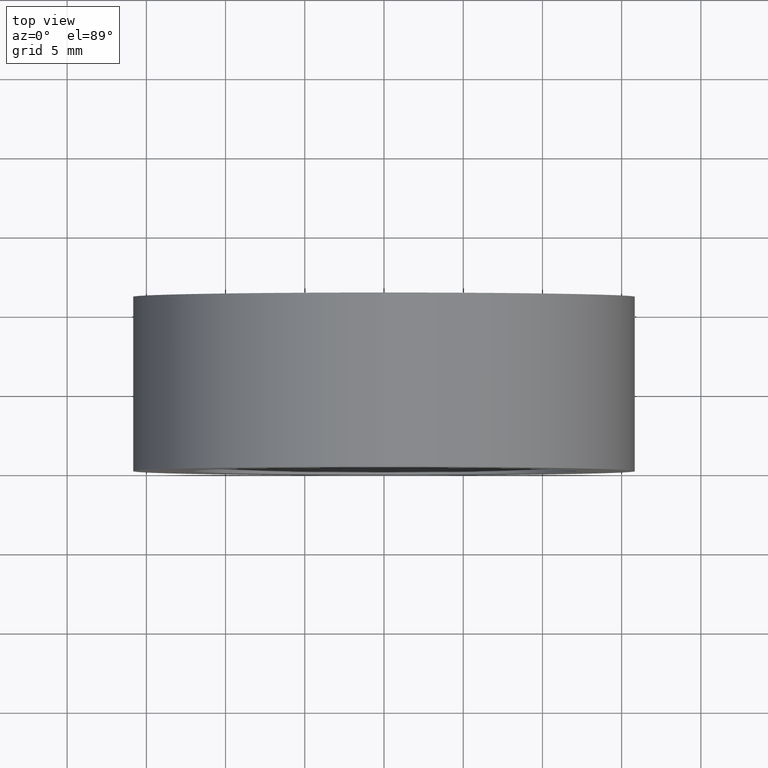
[diagram: clean part render]
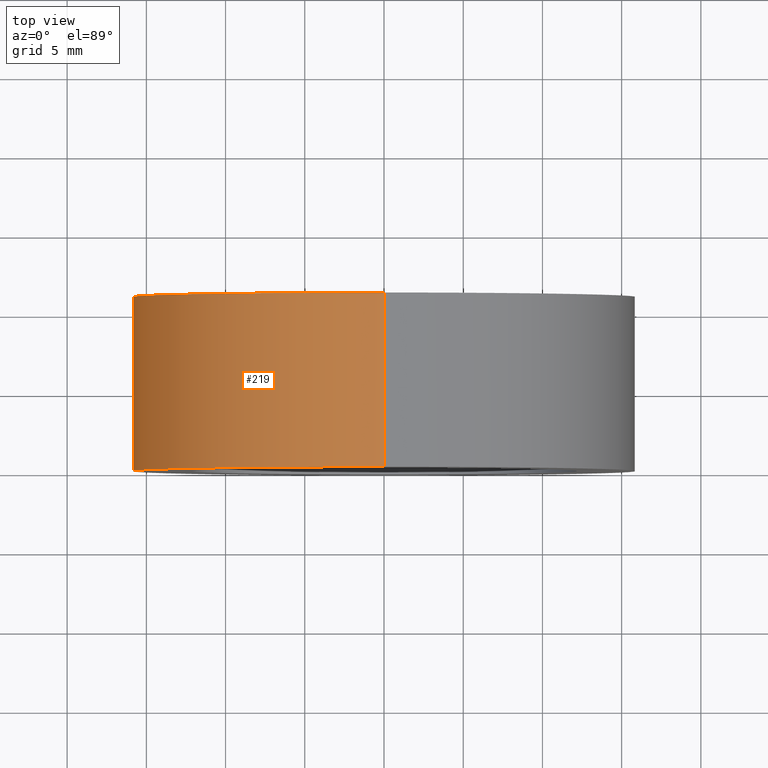
[diagram: same view with one face highlighted and labeled with its STEP entity id]
A machine part, top view. The second image highlights one B-rep face of the part: STEP entity #219.
In plain terms, the highlighted cylindrical surface (partial cylindrical patch) has radius 15.875 mm, axis along (-0, 1, -0).
Its self-contained STEP definition (entity closure, byte-faithful):
#9 = DIRECTION ( 'NONE',  ( -0.0000000000000000000, 1.000000000000000000, -0.0000000000000000000 ) ) ;
#61 = VERTEX_POINT ( 'NONE', #390 ) ;
#68 = ORIENTED_EDGE ( 'NONE', *, *, #351, .F. ) ;
#91 = EDGE_CURVE ( 'NONE', #61, #198, #320, .T. ) ;
#100 = CARTESIAN_POINT ( 'NONE',  ( 1.944126793646423600E-015, 60.02082041425541100, -15.87500000000000400 ) ) ;
#104 = EDGE_LOOP ( 'NONE', ( #68, #126, #204, #353 ) ) ;
#126 = ORIENTED_EDGE ( 'NONE', *, *, #224, .T. ) ;
#137 = FACE_OUTER_BOUND ( 'NONE', #104, .T. ) ;
#141 = CARTESIAN_POINT ( 'NONE',  ( 0.0000000000000000000, 0.0000000000000000000, 15.87500000000000400 ) ) ;
#143 = CIRCLE ( 'NONE', #297, 15.87500000000000400 ) ;
#151 = VECTOR ( 'NONE', #304, 1000.000000000000000 ) ;
#161 = DIRECTION ( 'NONE',  ( 0.0000000000000000000, 0.0000000000000000000, 1.000000000000000000 ) ) ;
#177 = CARTESIAN_POINT ( 'NONE',  ( 0.0000000000000000000, 10.99999999999999600, 15.87500000000000400 ) ) ;
#186 = VECTOR ( 'NONE', #335, 1000.000000000000000 ) ;
#198 = VERTEX_POINT ( 'NONE', #177 ) ;
#204 = ORIENTED_EDGE ( 'NONE', *, *, #243, .T. ) ;
#219 = ADVANCED_FACE ( 'NONE', ( #137 ), #302, .T. ) ;
#224 = EDGE_CURVE ( 'NONE', #225, #282, #143, .T. ) ;
#225 = VERTEX_POINT ( 'NONE', #391 ) ;
#241 = LINE ( 'NONE', #100, #151 ) ;
#243 = EDGE_CURVE ( 'NONE', #282, #198, #326, .T. ) ;
#281 = CARTESIAN_POINT ( 'NONE',  ( 0.0000000000000000000, 60.02082041425541100, 0.0000000000000000000 ) ) ;
#282 = VERTEX_POINT ( 'NONE', #141 ) ;
#297 = AXIS2_PLACEMENT_3D ( 'NONE', #373, #371, #354 ) ;
#302 = CYLINDRICAL_SURFACE ( 'NONE', #360, 15.87500000000000400 ) ;
#304 = DIRECTION ( 'NONE',  ( -0.0000000000000000000, 1.000000000000000000, -0.0000000000000000000 ) ) ;
#311 = DIRECTION ( 'NONE',  ( 0.0000000000000000000, 0.0000000000000000000, 1.000000000000000000 ) ) ;
#320 = CIRCLE ( 'NONE', #404, 15.87500000000000400 ) ;
#326 = LINE ( 'NONE', #376, #186 ) ;
#335 = DIRECTION ( 'NONE',  ( -0.0000000000000000000, 1.000000000000000000, -0.0000000000000000000 ) ) ;
#351 = EDGE_CURVE ( 'NONE', #225, #61, #241, .T. ) ;
#353 = ORIENTED_EDGE ( 'NONE', *, *, #91, .F. ) ;
#354 = DIRECTION ( 'NONE',  ( 0.0000000000000000000, 0.0000000000000000000, 1.000000000000000000 ) ) ;
#360 = AXIS2_PLACEMENT_3D ( 'NONE', #281, #392, #161 ) ;
#371 = DIRECTION ( 'NONE',  ( -0.0000000000000000000, 1.000000000000000000, -0.0000000000000000000 ) ) ;
#373 = CARTESIAN_POINT ( 'NONE',  ( 0.0000000000000000000, 0.0000000000000000000, 0.0000000000000000000 ) ) ;
#376 = CARTESIAN_POINT ( 'NONE',  ( 0.0000000000000000000, 60.02082041425541100, 15.87500000000000400 ) ) ;
#390 = CARTESIAN_POINT ( 'NONE',  ( 1.944126793646423600E-015, 10.99999999999999600, -15.87500000000000400 ) ) ;
#391 = CARTESIAN_POINT ( 'NONE',  ( 1.944126793646423600E-015, 0.0000000000000000000, -15.87500000000000400 ) ) ;
#392 = DIRECTION ( 'NONE',  ( -0.0000000000000000000, 1.000000000000000000, -0.0000000000000000000 ) ) ;
#404 = AXIS2_PLACEMENT_3D ( 'NONE', #407, #9, #311 ) ;
#407 = CARTESIAN_POINT ( 'NONE',  ( 0.0000000000000000000, 10.99999999999999600, 0.0000000000000000000 ) ) ;